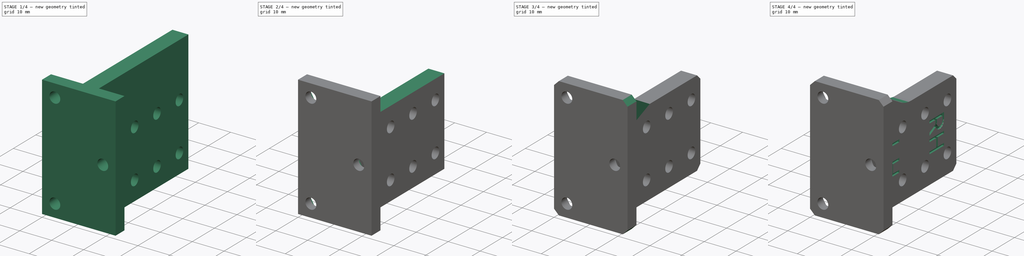
[diagram: build sequence overview — one tinted view per stage of 4, left to right]
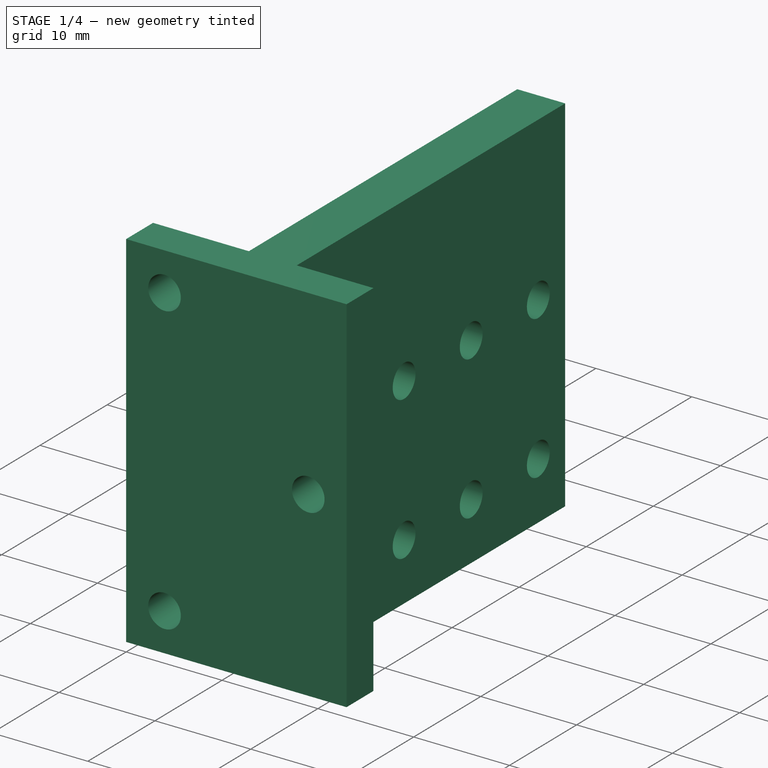
[diagram: stage 1 of 4 — iso view after this stage's code; geometry added in this stage tinted green]
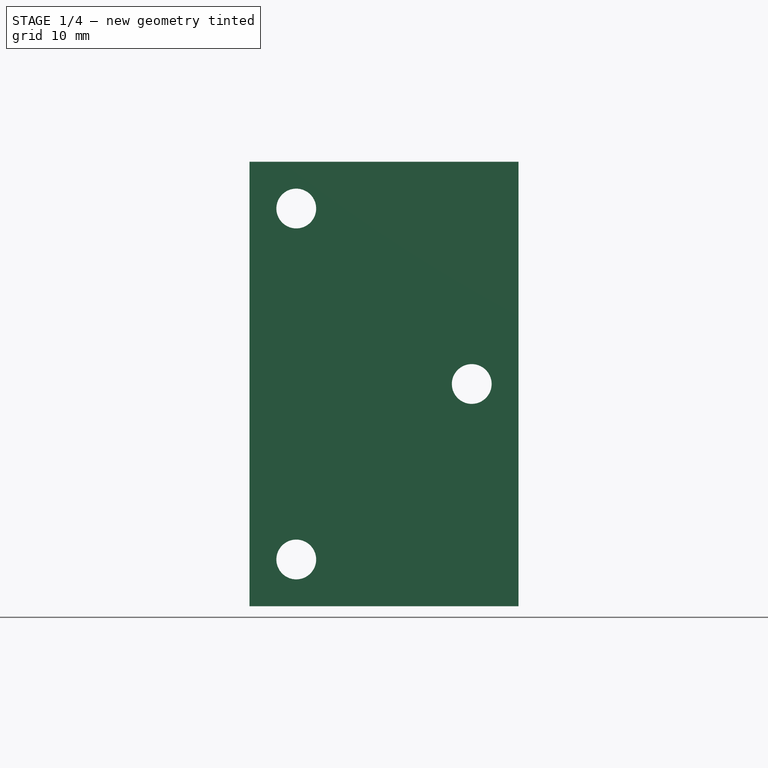
[diagram: stage 1 of 4 — front view after this stage's code; geometry added in this stage tinted green]
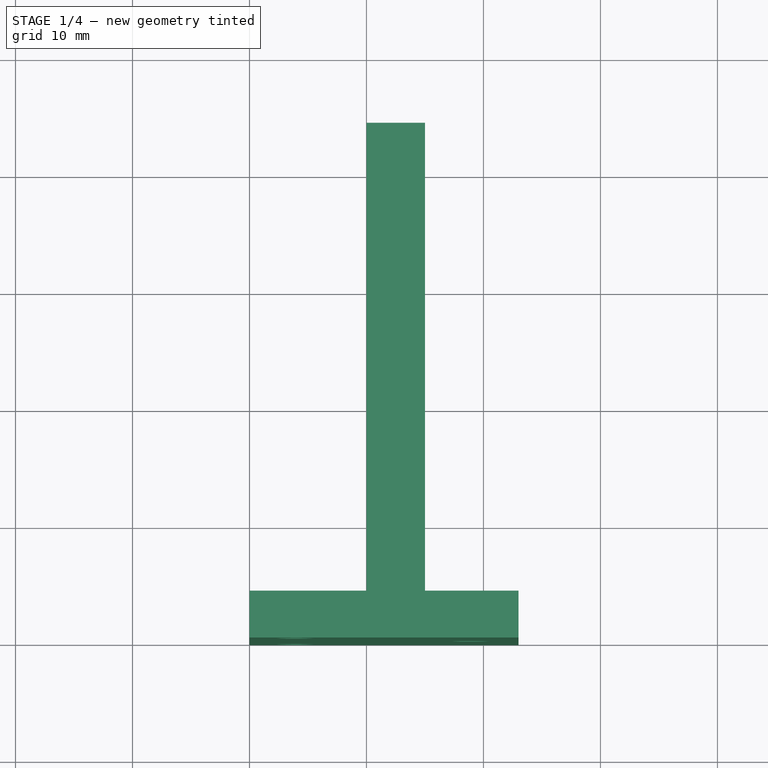
[diagram: stage 1 of 4 — top view after this stage's code; geometry added in this stage tinted green]
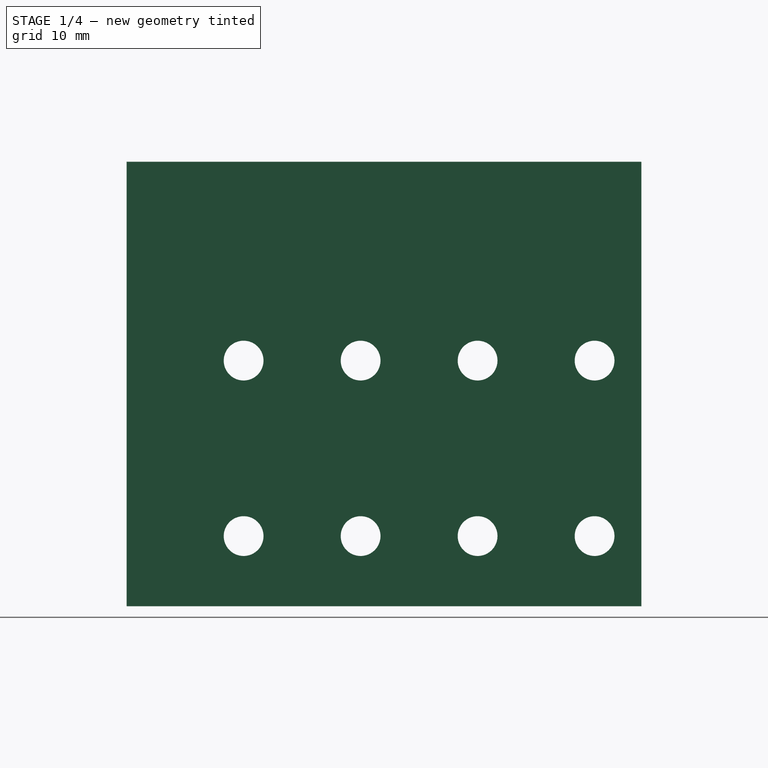
[diagram: stage 1 of 4 — right view after this stage's code; geometry added in this stage tinted green]
FCSTD DOCUMENT  (FreeCAD 0.20R29410 (Git))
Label: valve-mount
License: All rights reserved
LicenseURL: http://en.wikipedia.org/wiki/All_rights_reserved
objects: Sketcher::SketchObject×6, PartDesign::Pocket×4, PartDesign::Plane×3, PartDesign::Pad×2, PartDesign::Hole×2, PartDesign::Chamfer×2, Part::Part2DObjectPython×2, PartDesign::Fillet×1, PartDesign::Body×1
note: 34 computed .brp shape members not serialized (recipe doc carries the construction recipe); baked Part::Feature solids carry a one-line shape summary decoded from their .brp

FEATURE [Sketcher::SketchObject] Sketch  label="Base"
  FullyConstrained = true
  MapMode = 5
  Support = -> [XY_Plane]
  sketch-geometry (8):
    g0: LineSegment StartX=10 StartY=44 StartZ=0 EndX=15 EndY=44 EndZ=0
    g1: LineSegment StartX=15 StartY=44 StartZ=0 EndX=15 EndY=4 EndZ=0
    g2: LineSegment StartX=15 StartY=4 StartZ=0 EndX=23 EndY=4 EndZ=0
    g3: LineSegment StartX=10 StartY=44 StartZ=0 EndX=10 EndY=4 EndZ=0
    g4: LineSegment StartX=10 StartY=4 StartZ=0 EndX=0 EndY=4 EndZ=0
    g5: LineSegment StartX=0 StartY=4 StartZ=0 EndX=0 EndY=0 EndZ=0
    g6: LineSegment StartX=0 StartY=0 StartZ=0 EndX=23 EndY=0 EndZ=0
    g7: LineSegment StartX=23 StartY=0 StartZ=0 EndX=23 EndY=4 EndZ=0
  constraints (24):
    c: Vertical(g5)
    c: Coincident(g5,g6)
    c: Coincident(g5,g-1)
    c: Coincident(g4,g5)
    c: Coincident(g4,g3)
    c: Coincident(g3,g0)
    c: Coincident(g0,g1)
    c: Horizontal(g6)
    c: Horizontal(g2)
    c: Horizontal(g4)
    c: Horizontal(g0)
    c: Vertical(g3)
    c: Vertical(g1)
    c: DistanceY(g5,g5) = 4
    c: Coincident(g1,g2)
    c: Horizontal(g1,g3)
    c: DistanceY(g1,g1) = 40
    c: Vertical(g6,g2)
    c: Coincident(g7,g6)
    c: Coincident(g7,g2)
    c: DistanceX(g4,g3) = 10
    c: DistanceX(g0,g0) = 5
    c: DistanceX(g5,g6) = 23
    c: DistanceX(g1,g2) = 8
FEATURE [PartDesign::Pad] Pad
  Direction = (1,1,1)
  Length = 38
  Length2 = 100
  Profile = -> Sketch
  Type = 0
FEATURE [Sketcher::SketchObject] Sketch001
  FullyConstrained = true
  MapMode = 5
  Placement = pos=(0,0,0) rot=(0.57735,0.57735,0.57735;2.0944rad)
  Support = -> [YZ_Plane]
  sketch-geometry (9):
    g0: Circle CenterX=10 CenterY=21 CenterZ=0 NormalX=0 NormalY=0 NormalZ=1 AngleXU=0 Radius=1.75
    g1: Circle CenterX=20 CenterY=6 CenterZ=0 NormalX=0 NormalY=0 NormalZ=1 AngleXU=0 Radius=1.75
    g2: Circle CenterX=20 CenterY=21 CenterZ=0 NormalX=0 NormalY=0 NormalZ=1 AngleXU=0 Radius=1.75
    g3: Circle CenterX=10 CenterY=6 CenterZ=0 NormalX=0 NormalY=0 NormalZ=1 AngleXU=0 Radius=1.75
    g4: GeomPoint X=30 Y=6 Z=0
    g5: Circle CenterX=30 CenterY=21 CenterZ=0 NormalX=0 NormalY=0 NormalZ=1 AngleXU=0 Radius=1.75
    g6: Circle CenterX=40 CenterY=6 CenterZ=0 NormalX=0 NormalY=0 NormalZ=1 AngleXU=0 Radius=1.75
    g7: Circle CenterX=40 CenterY=21 CenterZ=0 NormalX=0 NormalY=0 NormalZ=1 AngleXU=0 Radius=1.75
    g8: Circle CenterX=30 CenterY=6 CenterZ=0 NormalX=0 NormalY=0 NormalZ=1 AngleXU=0 Radius=1.75
  constraints (25):
    c: Equal(g1,g0)
    c: Diameter(g1) = 3.5
    c: DistanceX(g0,g1) = 10
    c: DistanceY(g1,g0) = 15
    c: DistanceY(g-1,g1) = 6
    c: DistanceX(g-1,g0) = 10
    c: Equal(g3,g2)
    c: Equal(g2,g0)
    c: Horizontal(g0,g2)
    c: Vertical(g2,g1)
    c: Vertical(g3,g0)
    c: Horizontal(g3,g1)
    c: DistanceX(g1,g4) = 10
    c: Horizontal(g4,g1)
    c: Equal(g6,g5)
    c: Diameter(g6) = 3.5
    c: DistanceX(g5,g6) = 10
    c: DistanceY(g6,g5) = 15
    c: Equal(g8,g7)
    c: Equal(g7,g5)
    c: Horizontal(g5,g7)
    c: Vertical(g7,g6)
    c: Vertical(g8,g5)
    c: Horizontal(g8,g6)
    c: Coincident(g8,g4)
FEATURE [PartDesign::Hole] Hole
  BaseFeature = -> Pad
  CustomThreadClearance = 0
  Depth = 25
  DepthType = 1
  Diameter = 3.4
  DrillForDepth = false
  DrillPoint = 1
  DrillPointAngle = 118
  HoleCutCountersinkAngle = 90
  HoleCutCustomValues = false
  HoleCutDepth = 0
  HoleCutDiameter = 6.1
  HoleCutType = 0
  ModelThread = false
  Profile = -> Sketch001
  Reversed = true
  Tapered = false
  TaperedAngle = 90
  ThreadClass = 0
  ThreadDepth = 23.5
  ThreadDepthType = 0
  ThreadDirection = 0
  ThreadFit = 0
  ThreadSize = 9
  ThreadType = 1
  Threaded = false
  UseCustomThreadClearance = false
FEATURE [Sketcher::SketchObject] Sketch002  label="BaseHoles"
  FullyConstrained = true
  MapMode = 5
  Placement = pos=(0,0,0) rot=(1,0,0;1.5708rad)
  Support = -> [XZ_Plane]
  sketch-geometry (5):
    g0: Circle CenterX=4 CenterY=34 CenterZ=0 NormalX=0 NormalY=0 NormalZ=1 AngleXU=0 Radius=1.75
    g1: Circle CenterX=34 CenterY=4 CenterZ=0 NormalX=0 NormalY=0 NormalZ=1 AngleXU=0 Radius=1.75
    g2: Circle CenterX=34 CenterY=34 CenterZ=0 NormalX=0 NormalY=0 NormalZ=1 AngleXU=0 Radius=1.75
    g3: Circle CenterX=4 CenterY=4 CenterZ=0 NormalX=0 NormalY=0 NormalZ=1 AngleXU=0 Radius=1.75
    g4: Circle CenterX=19 CenterY=19 CenterZ=0 NormalX=0 NormalY=0 NormalZ=1 AngleXU=0 Radius=1.75
  constraints (15):
    c: Diameter(g3) = 3.5
    c: Equal(g3,g0)
    c: Equal(g0,g2)
    c: Equal(g2,g1)
    c: DistanceX(g-1,g0) = 4
    c: DistanceY(g-1,g3) = 4
    c: Vertical(g3,g0)
    c: DistanceY(g3,g0) = 30
    c: DistanceX(g0,g2) = 30
    c: Vertical(g1,g2)
    c: Horizontal(g1,g3)
    c: Equal(g4,g0)
    c: DistanceX(g0,g4) = 15
    c: Horizontal(g2,g0)
    c: DistanceY(g4,g0) = 15
FEATURE [PartDesign::Hole] Hole001
  BaseFeature = -> Hole
  CustomThreadClearance = 0
  Depth = 25
  DepthType = 0
  Diameter = 3.4
  DrillForDepth = false
  DrillPoint = 1
  DrillPointAngle = 118
  HoleCutCountersinkAngle = 90
  HoleCutCustomValues = false
  HoleCutDepth = 0
  HoleCutDiameter = 6.1
  HoleCutType = 0
  ModelThread = false
  Profile = -> Sketch002
  Tapered = false
  TaperedAngle = 90
  ThreadClass = 0
  ThreadDepth = 23.5
  ThreadDepthType = 0
  ThreadDirection = 0
  ThreadFit = 0
  ThreadSize = 9
  ThreadType = 1
  Threaded = false
  UseCustomThreadClearance = false
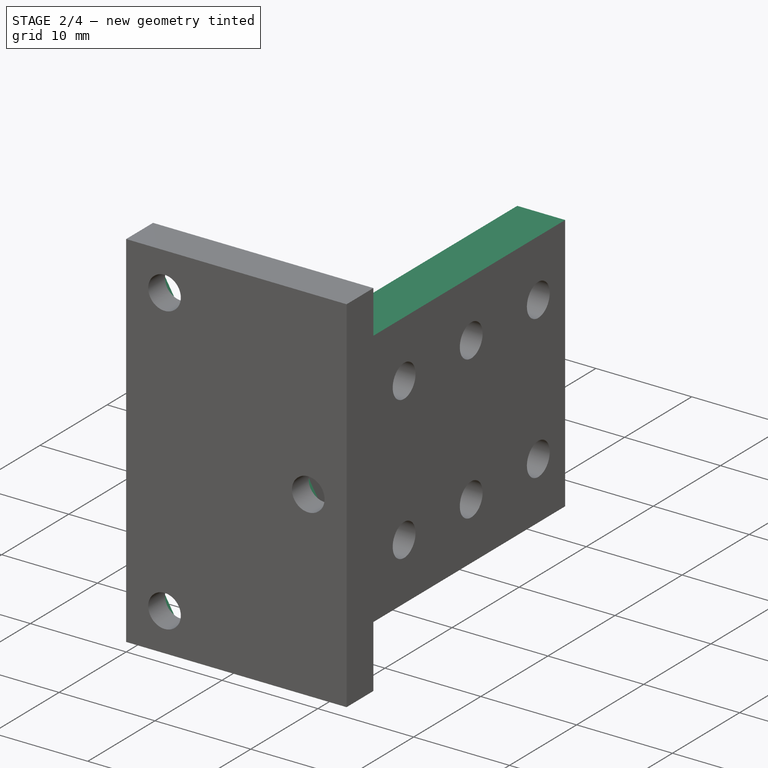
[diagram: stage 2 of 4 — iso view after this stage's code; geometry added in this stage tinted green]
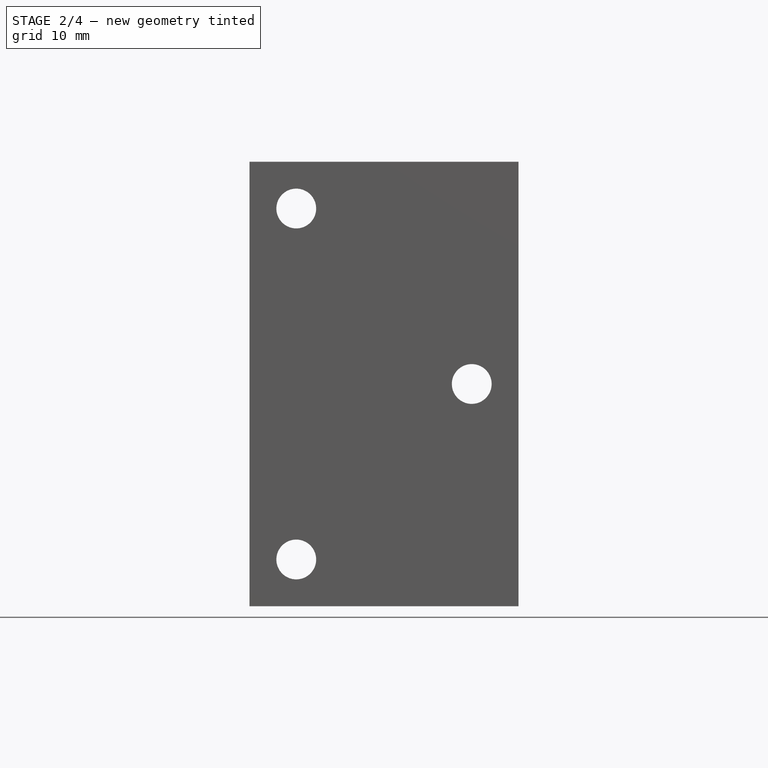
[diagram: stage 2 of 4 — front view after this stage's code; geometry added in this stage tinted green]
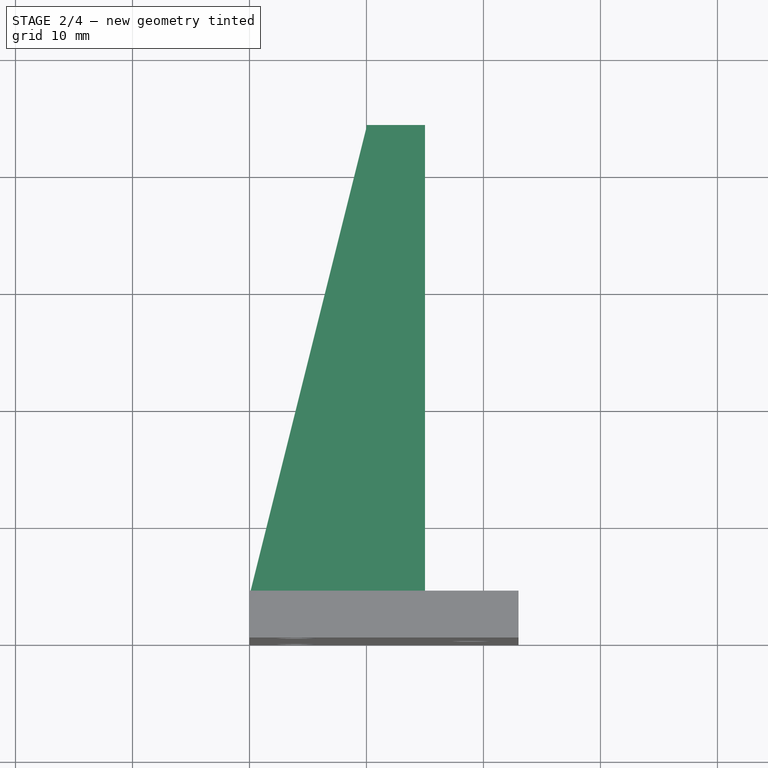
[diagram: stage 2 of 4 — top view after this stage's code; geometry added in this stage tinted green]
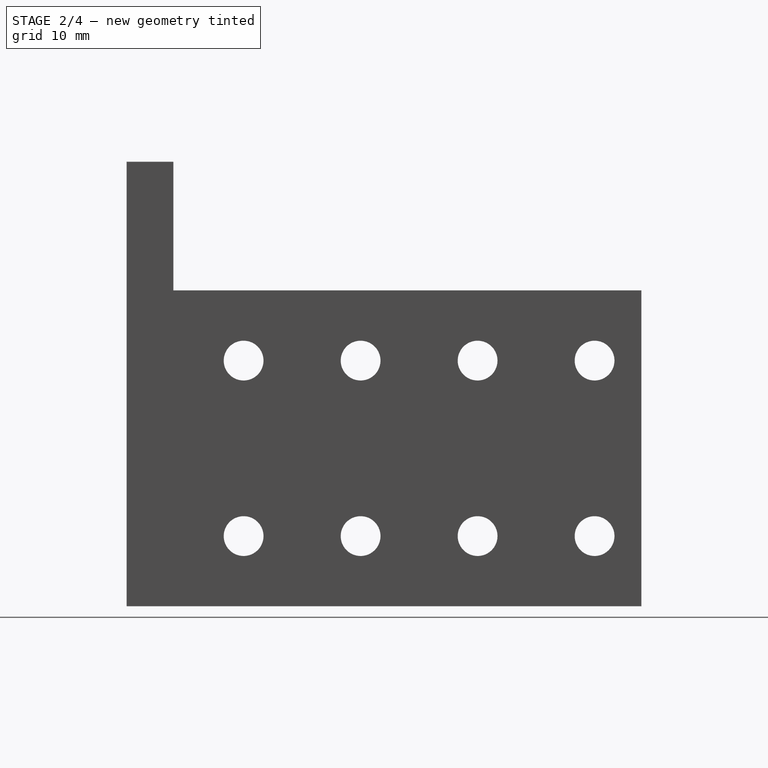
[diagram: stage 2 of 4 — right view after this stage's code; geometry added in this stage tinted green]
FEATURE [Sketcher::SketchObject] Sketch003
  AttachmentOffset = pos=(0,0,-5) rot=(0,0,1;0rad)
  ExternalGeometry = -> [Sketch002]
  FullyConstrained = true
  MapMode = 5
  Placement = pos=(0,5,1.1e-15) rot=(1,0,0;1.5708rad)
  Support = -> [XZ_Plane]
  sketch-geometry (35):
    g0: LineSegment StartX=7.17543 StartY=34 StartZ=0 EndX=5.58771 EndY=36.75 EndZ=0
    g1: LineSegment StartX=5.58771 StartY=36.75 StartZ=0 EndX=2.41229 EndY=36.75 EndZ=0
    g2: LineSegment StartX=2.41229 StartY=36.75 StartZ=0 EndX=0.824574 EndY=34 EndZ=0
    g3: LineSegment StartX=0.824574 StartY=34 StartZ=0 EndX=2.41229 EndY=31.25 EndZ=0
    g4: LineSegment StartX=2.41229 StartY=31.25 StartZ=0 EndX=5.58771 EndY=31.25 EndZ=0
    g5: LineSegment StartX=5.58771 StartY=31.25 StartZ=0 EndX=7.17543 EndY=34 EndZ=0
    g6: Circle CenterX=4 CenterY=34 CenterZ=0 NormalX=0 NormalY=0 NormalZ=1 AngleXU=0 Radius=3.17543
    g7: LineSegment StartX=35.5877 StartY=31.25 StartZ=0 EndX=37.1754 EndY=34 EndZ=0
    g8: LineSegment StartX=37.1754 StartY=34 StartZ=0 EndX=35.5877 EndY=36.75 EndZ=0
    g9: LineSegment StartX=35.5877 StartY=36.75 StartZ=0 EndX=32.4123 EndY=36.75 EndZ=0
    g10: LineSegment StartX=32.4123 StartY=36.75 StartZ=0 EndX=30.8246 EndY=34 EndZ=0
    g11: LineSegment StartX=30.8246 StartY=34 StartZ=0 EndX=32.4123 EndY=31.25 EndZ=0
    g12: LineSegment StartX=32.4123 StartY=31.25 StartZ=0 EndX=35.5877 EndY=31.25 EndZ=0
    g13: Circle CenterX=34 CenterY=34 CenterZ=0 NormalX=0 NormalY=0 NormalZ=1 AngleXU=0 Radius=3.17543
    g14: LineSegment StartX=35.5877 StartY=6.75 StartZ=0 EndX=32.4123 EndY=6.75 EndZ=0
    g15: LineSegment StartX=32.4123 StartY=6.75 StartZ=0 EndX=30.8246 EndY=4 EndZ=0
    g16: LineSegment StartX=30.8246 StartY=4 StartZ=0 EndX=32.4123 EndY=1.25 EndZ=0
    g17: LineSegment StartX=32.4123 StartY=1.25 StartZ=0 EndX=35.5877 EndY=1.25 EndZ=0
    g18: LineSegment StartX=35.5877 StartY=1.25 StartZ=0 EndX=37.1754 EndY=4 EndZ=0
    g19: LineSegment StartX=37.1754 StartY=4 StartZ=0 EndX=35.5877 EndY=6.75 EndZ=0
    g20: Circle CenterX=34 CenterY=4 CenterZ=0 NormalX=0 NormalY=0 NormalZ=1 AngleXU=0 Radius=3.17543
    g21: LineSegment StartX=7.17543 StartY=4 StartZ=0 EndX=5.58771 EndY=6.75 EndZ=0
    g22: LineSegment StartX=5.58771 StartY=6.75 StartZ=0 EndX=2.41229 EndY=6.75 EndZ=0
    g23: LineSegment StartX=2.41229 StartY=6.75 StartZ=0 EndX=0.824574 EndY=4 EndZ=0
    g24: LineSegment StartX=0.824574 StartY=4 StartZ=0 EndX=2.41229 EndY=1.25 EndZ=0
    g25: LineSegment StartX=2.41229 StartY=1.25 StartZ=0 EndX=5.58771 EndY=1.25 EndZ=0
    g26: LineSegment StartX=5.58771 StartY=1.25 StartZ=0 EndX=7.17543 EndY=4 EndZ=0
    g27: Circle CenterX=4 CenterY=4 CenterZ=0 NormalX=0 NormalY=0 NormalZ=1 AngleXU=0 Radius=3.17543
    g28: LineSegment StartX=20.5877 StartY=16.25 StartZ=0 EndX=22.1754 EndY=19 EndZ=0
    g29: LineSegment StartX=22.1754 StartY=19 StartZ=0 EndX=20.5877 EndY=21.75 EndZ=0
    g30: LineSegment StartX=20.5877 StartY=21.75 StartZ=0 EndX=17.4123 EndY=21.75 EndZ=0
    g31: LineSegment StartX=17.4123 StartY=21.75 StartZ=0 EndX=15.8246 EndY=19 EndZ=0
    g32: LineSegment StartX=15.8246 StartY=19 StartZ=0 EndX=17.4123 EndY=16.25 EndZ=0
    g33: LineSegment StartX=17.4123 StartY=16.25 StartZ=0 EndX=20.5877 EndY=16.25 EndZ=0
    g34: Circle CenterX=19 CenterY=19 CenterZ=0 NormalX=0 NormalY=0 NormalZ=1 AngleXU=0 Radius=3.17543
  constraints (84):
    c: Coincident(g0,g1)
    c: Coincident(g1,g2)
    c: Coincident(g2,g3)
    c: Coincident(g3,g4)
    c: Coincident(g4,g5)
    c: Coincident(g5,g0)
    c: Equal(g0, g1-g5) x5
    c: PointOnObject(g0,g6)
    c: PointOnObject(g1,g6)
    c: PointOnObject(g2,g6)
    c: PointOnObject(g3,g6)
    c: PointOnObject(g4,g6)
    c: PointOnObject(g5,g6)
    c: Coincident(g7,g8)
    c: Coincident(g8,g9)
    c: Coincident(g9,g10)
    c: Coincident(g10,g11)
    c: Coincident(g11,g12)
    c: Coincident(g12,g7)
    c: Equal(g7, g8-g12) x5
    c: PointOnObject(g7,g13)
    c: PointOnObject(g8,g13)
    c: PointOnObject(g9,g13)
    c: PointOnObject(g10,g13)
    c: PointOnObject(g11,g13)
    c: PointOnObject(g12,g13)
    c: Coincident(g14,g15)
    c: Coincident(g15,g16)
    c: Coincident(g16,g17)
    c: Coincident(g17,g18)
    c: Coincident(g18,g19)
    c: Coincident(g19,g14)
    c: Equal(g14, g15-g19) x5
    c: PointOnObject(g14,g20)
    c: PointOnObject(g15,g20)
    c: PointOnObject(g16,g20)
    c: PointOnObject(g17,g20)
    c: PointOnObject(g18,g20)
    c: PointOnObject(g19,g20)
    c: Coincident(g21,g22)
    c: Coincident(g22,g23)
    c: Coincident(g23,g24)
    c: Coincident(g24,g25)
    c: Coincident(g25,g26)
    c: Coincident(g26,g21)
    c: Equal(g21, g22-g26) x5
    c: PointOnObject(g21,g27)
    c: PointOnObject(g22,g27)
    c: PointOnObject(g23,g27)
    c: PointOnObject(g24,g27)
    c: PointOnObject(g25,g27)
    c: PointOnObject(g26,g27)
    c: Distance(g2,g0) = 5.5
    c: Horizontal(g1)
    c: Horizontal(g9)
    c: Horizontal(g22)
    c: Horizontal(g14)
    c: DistanceX(g6,g13) = 30
    c: Vertical(g6,g27)
    c: Vertical(g13,g20)
    c: Horizontal(g27,g20)
    c: Equal(g20,g27)
    c: Equal(g27,g6)
    c: Equal(g6,g13)
    c: DistanceY(g27,g6) = 30
    c: Horizontal(g13,g6)
    c: DistanceY(g-1,g27) = 4
    c: DistanceX(g-1,g27) = 4
    c: Coincident(g28,g29)
    c: Coincident(g29,g30)
    c: Coincident(g30,g31)
    c: Coincident(g31,g32)
    c: Coincident(g32,g33)
    c: Coincident(g33,g28)
    c: Equal(g28, g29-g33) x5
    c: PointOnObject(g28,g34)
    c: PointOnObject(g29,g34)
    c: PointOnObject(g30,g34)
    c: PointOnObject(g31,g34)
    c: PointOnObject(g32,g34)
    c: PointOnObject(g33,g34)
    c: Horizontal(g30)
    c: Coincident(g34,g-3)
    c: Equal(g27,g34)
FEATURE [PartDesign::Pocket] Pocket
  BaseFeature = -> Hole001
  Direction = (1,1,1)
  Length = 2.5
  Length2 = 100
  Profile = -> Sketch003
  Reversed = true
  Type = 0
FEATURE [Sketcher::SketchObject] Sketch004  label="Base001"
  AttachmentOffset = pos=(0,0,38) rot=(0,0,1;0rad)
  FullyConstrained = true
  MapMode = 5
  Placement = pos=(0,0,38) rot=(0,0,1;0rad)
  Support = -> [XY_Plane]
  sketch-geometry (9):
    g0: LineSegment StartX=10 StartY=44 StartZ=0 EndX=15 EndY=44 EndZ=0
    g1: LineSegment StartX=15 StartY=44 StartZ=0 EndX=15 EndY=4 EndZ=0
    g2: LineSegment StartX=15 StartY=4 StartZ=0 EndX=23 EndY=4 EndZ=0
    g3: LineSegment StartX=10 StartY=44 StartZ=0 EndX=10 EndY=4 EndZ=0
    g4: LineSegment StartX=10 StartY=4 StartZ=0 EndX=0 EndY=4 EndZ=0
    g5: LineSegment StartX=0 StartY=4 StartZ=0 EndX=0 EndY=0 EndZ=0
    g6: LineSegment StartX=0 StartY=0 StartZ=0 EndX=23 EndY=0 EndZ=0
    g7: LineSegment StartX=23 StartY=0 StartZ=0 EndX=23 EndY=4 EndZ=0
    g8: LineSegment StartX=10 StartY=4 StartZ=0 EndX=15 EndY=4 EndZ=0
  constraints (26):
    c: Vertical(g5)
    c: Coincident(g5,g6)
    c: Coincident(g5,g-1)
    c: Coincident(g4,g5)
    c: Coincident(g4,g3)
    c: Coincident(g3,g0)
    c: Coincident(g0,g1)
    c: Horizontal(g6)
    c: Horizontal(g2)
    c: Horizontal(g4)
    c: Horizontal(g0)
    c: Vertical(g3)
    c: Vertical(g1)
    c: DistanceY(g5,g5) = 4
    c: Coincident(g1,g2)
    c: Horizontal(g1,g3)
    c: DistanceY(g1,g1) = 40
    c: Vertical(g6,g2)
    c: Coincident(g7,g6)
    c: Coincident(g7,g2)
    c: DistanceX(g4,g3) = 10
    c: DistanceX(g0,g0) = 5
    c: DistanceX(g5,g6) = 23
    c: DistanceX(g1,g2) = 8
    c: Coincident(g8,g3)
    c: Coincident(g8,g1)
FEATURE [PartDesign::Pocket] Pocket001
  BaseFeature = -> Pocket
  Direction = (1,1,1)
  Length = 11
  Length2 = 100
  Profile = -> Sketch004
  Type = 0
FEATURE [PartDesign::Plane] DatumPlane
  AttachmentOffset = pos=(0,0,-13.5) rot=(0,0,1;0rad)
  Length = 61.7473
  MapMode = 5
  Placement = pos=(0,0,13.5) rot=(0,0,1;0rad)
  ResizeMode = 0
  Support = -> [Pocket001]
  Width = 80.7473
FEATURE [Sketcher::SketchObject] Sketch005
  ExternalGeometry = -> [Pocket001]
  FullyConstrained = true
  MapMode = 5
  Placement = pos=(0,0,13.5) rot=(0,0,1;0rad)
  Support = -> [DatumPlane]
  sketch-geometry (3):
    g0: LineSegment StartX=10 StartY=4 StartZ=0 EndX=0 EndY=4 EndZ=0
    g1: LineSegment StartX=0 StartY=4 StartZ=0 EndX=10 EndY=44 EndZ=0
    g2: LineSegment StartX=10 StartY=44 StartZ=0 EndX=10 EndY=4 EndZ=0
  constraints (6):
    c: Coincident(g0,g-4)
    c: Coincident(g0,g-5)
    c: Coincident(g1,g0)
    c: Coincident(g1,g-3)
    c: Coincident(g2,g1)
    c: Coincident(g2,g0)
FEATURE [PartDesign::Pad] Pad001
  BaseFeature = -> Pocket001
  Direction = (1,1,1)
  Length = 3
  Length2 = 100
  Midplane = true
  Profile = -> Sketch005
  Type = 0
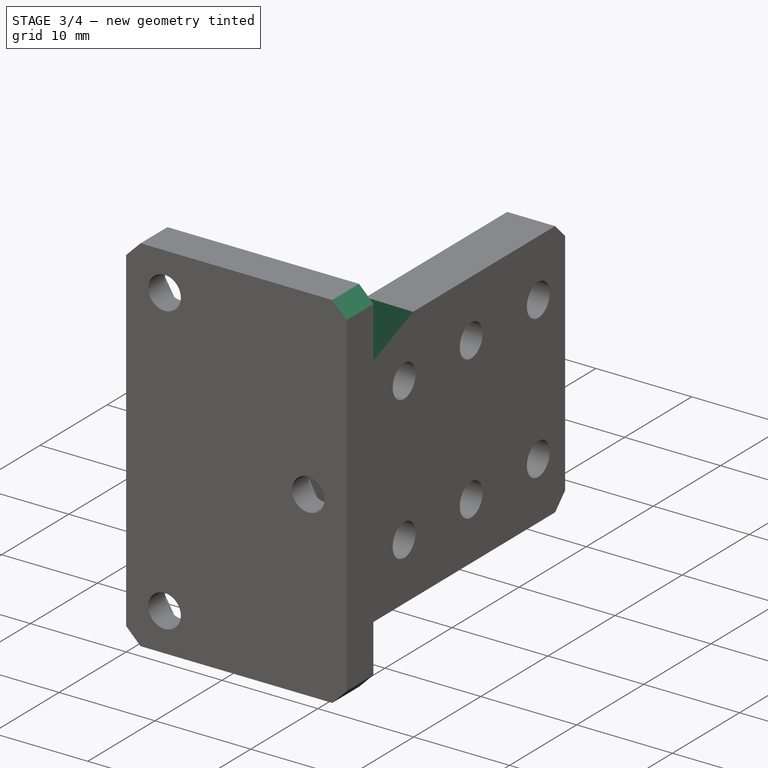
[diagram: stage 3 of 4 — iso view after this stage's code; geometry added in this stage tinted green]
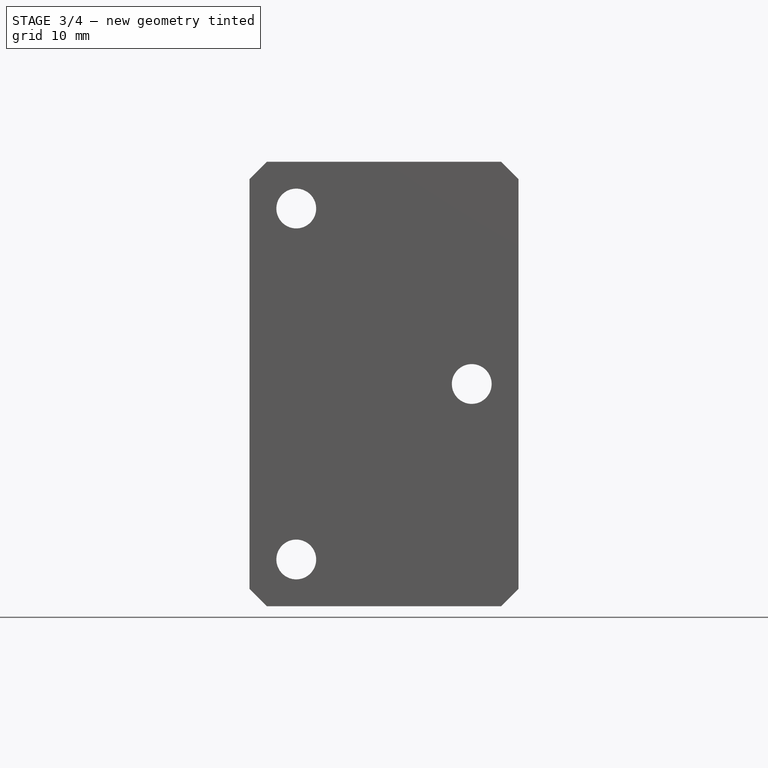
[diagram: stage 3 of 4 — front view after this stage's code; geometry added in this stage tinted green]
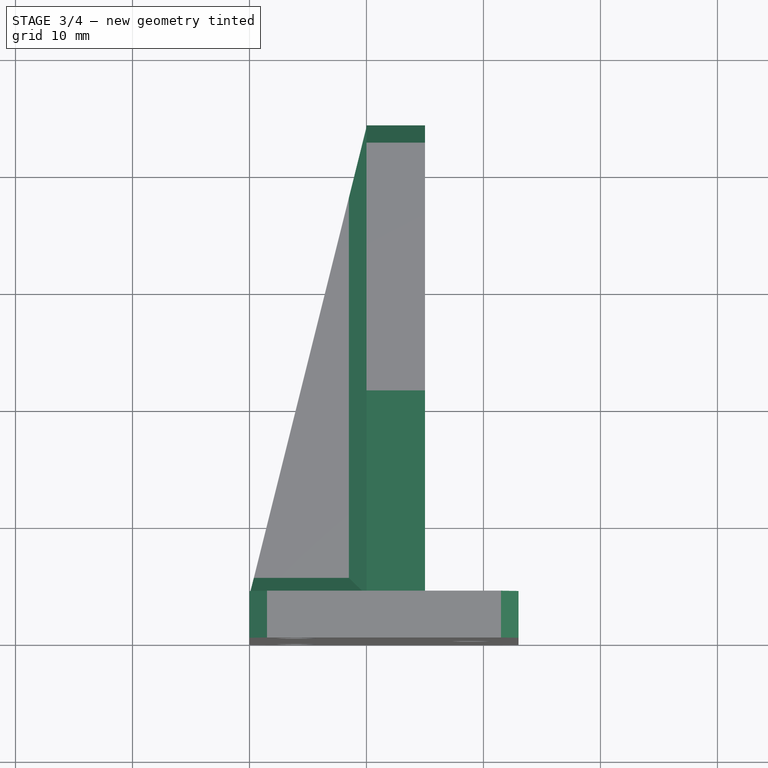
[diagram: stage 3 of 4 — top view after this stage's code; geometry added in this stage tinted green]
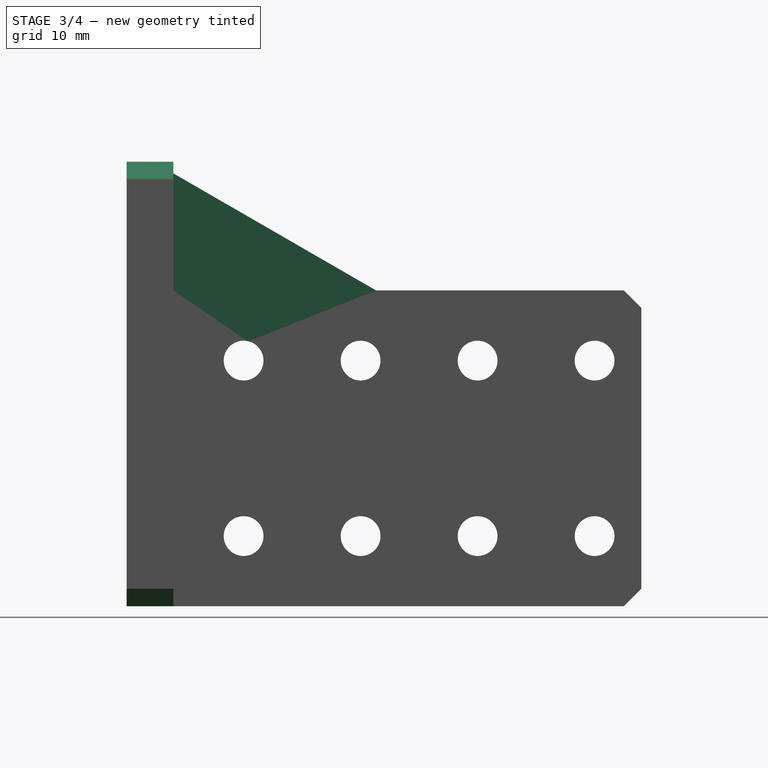
[diagram: stage 3 of 4 — right view after this stage's code; geometry added in this stage tinted green]
FEATURE [PartDesign::Chamfer] Chamfer
  Angle = 45
  Base = -> Pad001 [Edge60,Edge77,Edge35,Edge3,Edge1,Edge59,Edge11,Edge27,Edge9,Edge51]
  BaseFeature = -> Pad001
  ChamferType = 0
  FlipDirection = false
  Size = 1.5
  Size2 = 1
  SupportTransform = false
  UseAllEdges = false
FEATURE [PartDesign::Chamfer] Chamfer001
  Angle = 60
  Base = -> Chamfer [Edge65]
  BaseFeature = -> Chamfer
  ChamferType = 2
  FlipDirection = true
  Size = 10
  Size2 = 1
  SupportTransform = false
  UseAllEdges = false
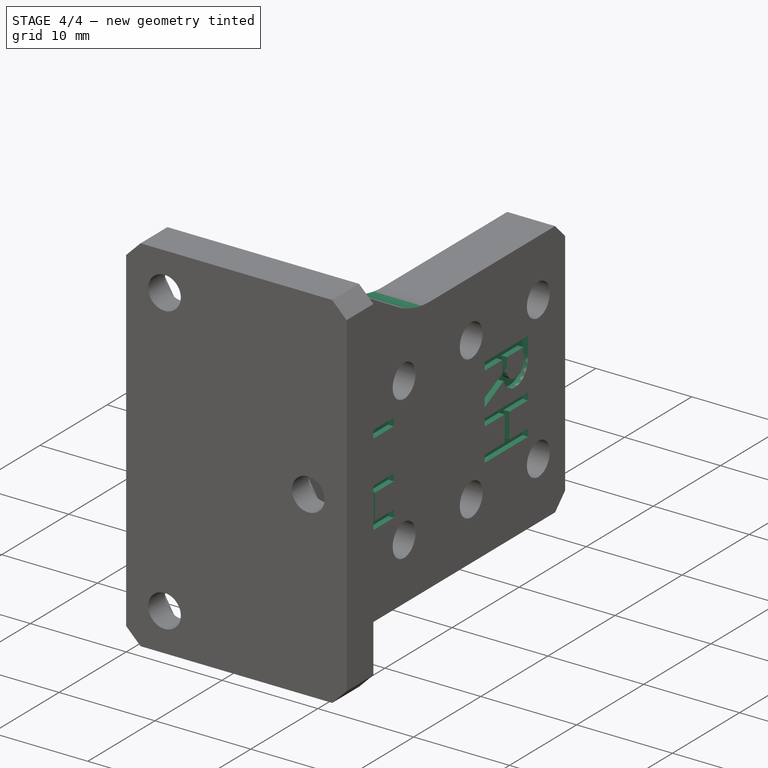
[diagram: stage 4 of 4 — iso view after this stage's code; geometry added in this stage tinted green]
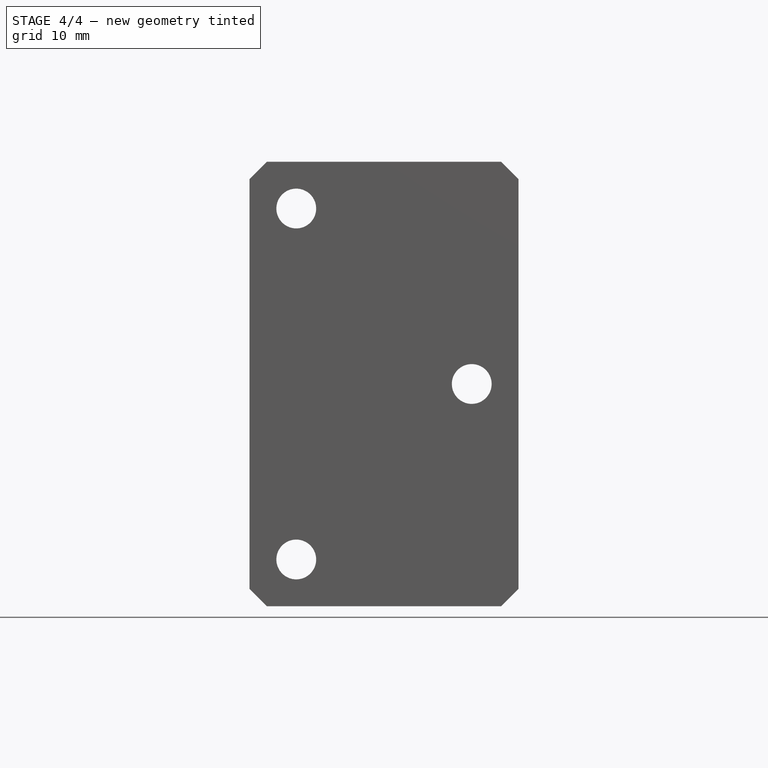
[diagram: stage 4 of 4 — front view after this stage's code; geometry added in this stage tinted green]
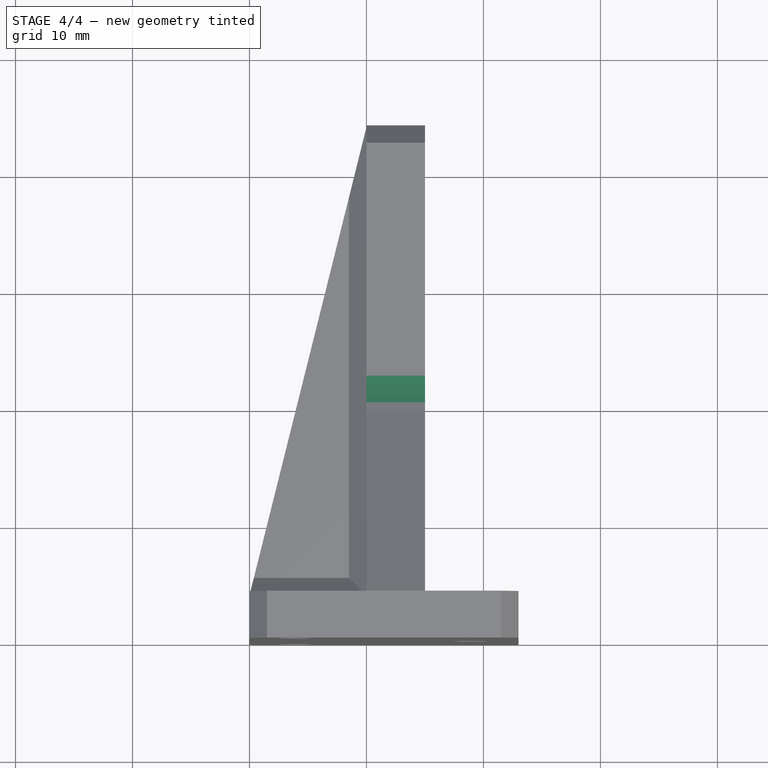
[diagram: stage 4 of 4 — top view after this stage's code; geometry added in this stage tinted green]
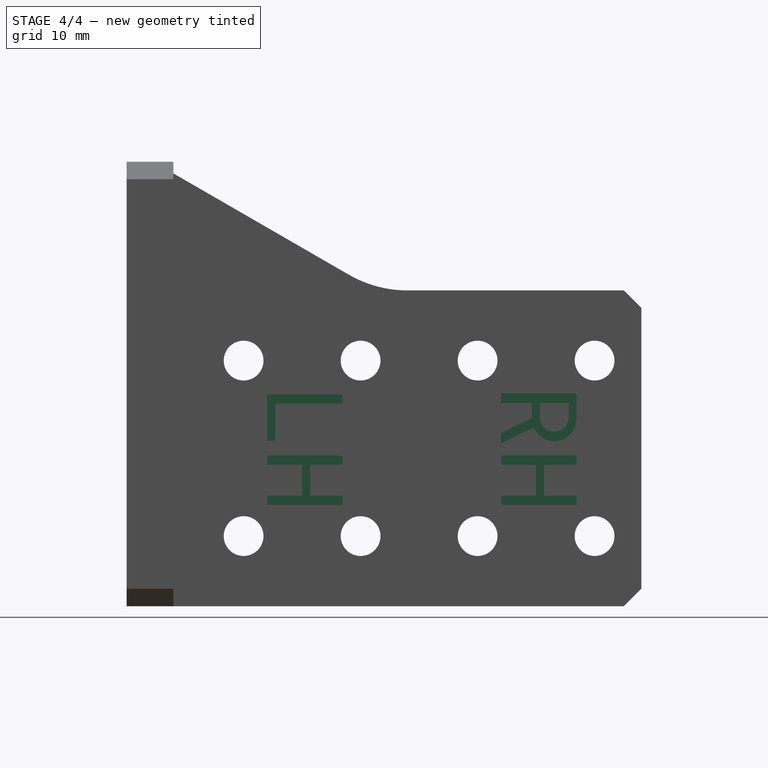
[diagram: stage 4 of 4 — right view after this stage's code; geometry added in this stage tinted green]
FEATURE [PartDesign::Fillet] Fillet
  Base = -> Chamfer001 [Edge17]
  BaseFeature = -> Chamfer001
  Radius = 10
  SupportTransform = false
  UseAllEdges = false
FEATURE [PartDesign::Plane] DatumPlane001  label="PrintPlane"
  Length = 61.225
  MapMode = 5
  Placement = pos=(0,0,0) rot=(1,0,0;1.5708rad)
  ResizeMode = 0
  Support = -> [Fillet]
  Width = 74.225
FEATURE [PartDesign::Plane] DatumPlane002  label="Toolhead Labels"
  Length = 82.1864
  MapMode = 5
  Placement = pos=(15,0,0) rot=(0.57735,0.57735,0.57735;2.0944rad)
  ResizeMode = 0
  Support = -> [Fillet]
  Width = 76.1864
FEATURE [Part::Part2DObjectPython] ShapeString  label="RH Label"  # Draft 2D object (typed FeaturePython)
  AttachmentOffset = pos=(32,19,0) rot=(0,0,-1;1.5708rad)
  FontFile = <userpath>/Github/index-machines/lumenpnp/lib/fonts/RobotoMono-VariableFont_weight.ttf
  MakeFace = true
  MapMode = 2
  Placement = pos=(15,32,19) rot=(0,1,0;1.5708rad)
  Size = 8
  String = RH
  Support = -> [DatumPlane002]
  Tracking = 0
FEATURE [Part::Part2DObjectPython] ShapeString001  label="LH Label"  # Draft 2D object (typed FeaturePython)
  AttachmentOffset = pos=(12,19,0) rot=(0,0,-1;1.5708rad)
  FontFile = <userpath>/Github/index-machines/lumenpnp/lib/fonts/RobotoMono-VariableFont_weight.ttf
  MakeFace = true
  MapMode = 2
  Placement = pos=(15,12,19) rot=(0,1,0;1.5708rad)
  Size = 8
  String = LH
  Support = -> [DatumPlane002]
  Tracking = 0
FEATURE [PartDesign::Pocket] Pocket002
  BaseFeature = -> Fillet
  Direction = (-1,0,0)
  Length = 0.6
  Length2 = 5
  Profile = -> ShapeString
  ReferenceAxis = -> ShapeString [N_Axis]
  Type = 0
FEATURE [PartDesign::Pocket] Pocket003
  BaseFeature = -> Pocket002
  Direction = (-1,0,0)
  Length = 0.6
  Length2 = 5
  Profile = -> ShapeString001
  ReferenceAxis = -> ShapeString001 [N_Axis]
  Type = 0
FEATURE [PartDesign::Body] Body
  Group = -> [Sketch,Pad,Sketch001,Hole,Sketch002,Hole001,Sketch003,Pocket,Sketch004,Pocket001,DatumPlane,Sketch005,Pad001,Chamfer,Chamfer001,Fillet,DatumPlane001,DatumPlane002,ShapeString,ShapeString001,Pocket002,Pocket003]
  Origin = -> Origin
  Tip = -> Pocket003
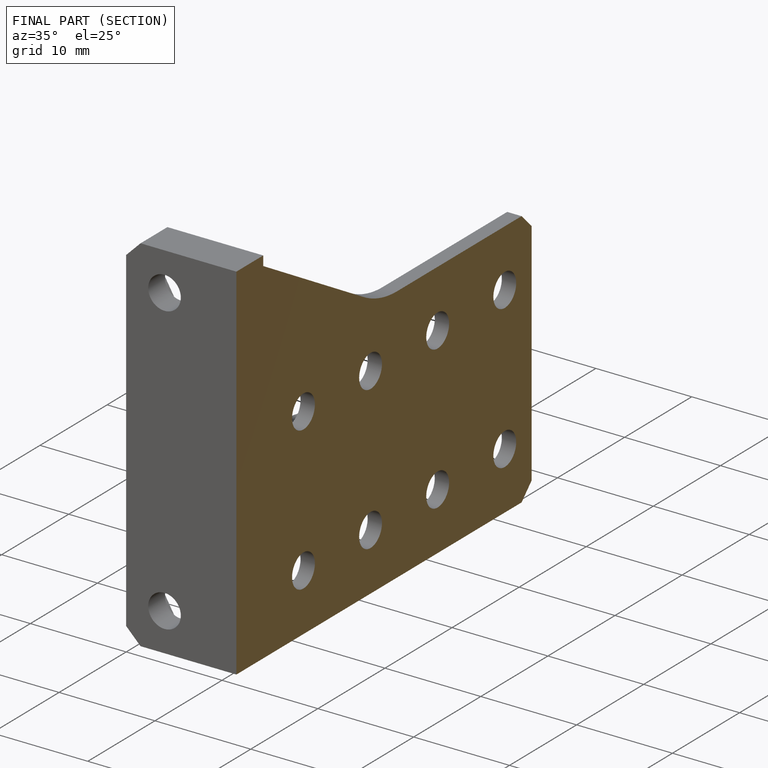
[diagram: finished part — half-section view (interior)]
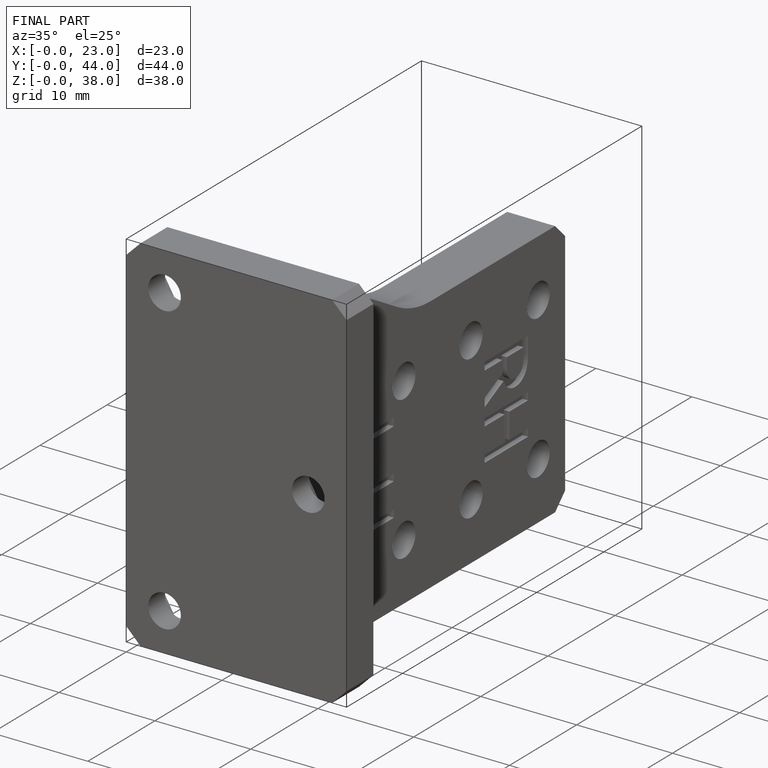
[diagram: finished part — iso view with bounding-box wireframe]
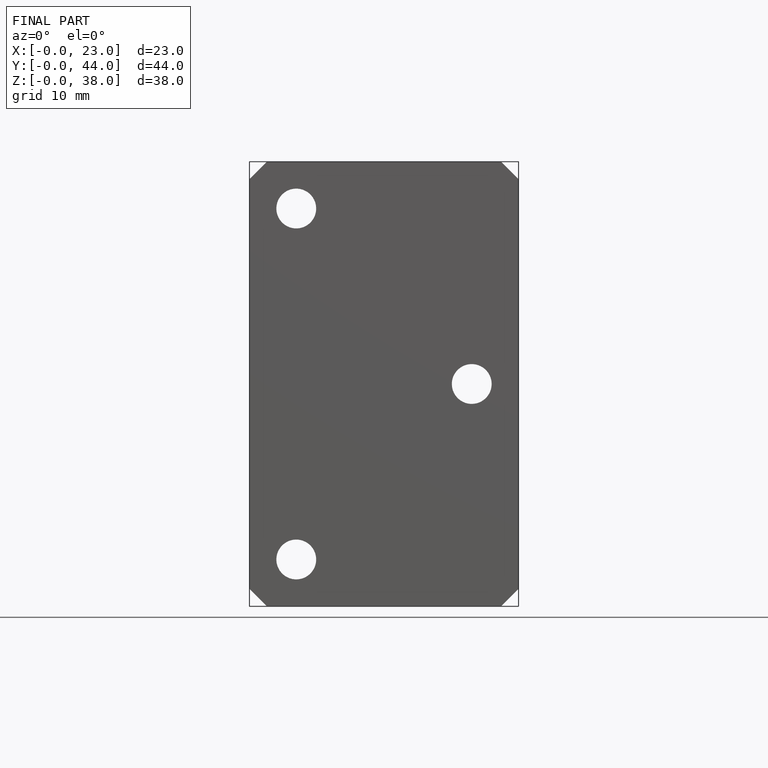
[diagram: finished part — front view with bounding-box wireframe]
